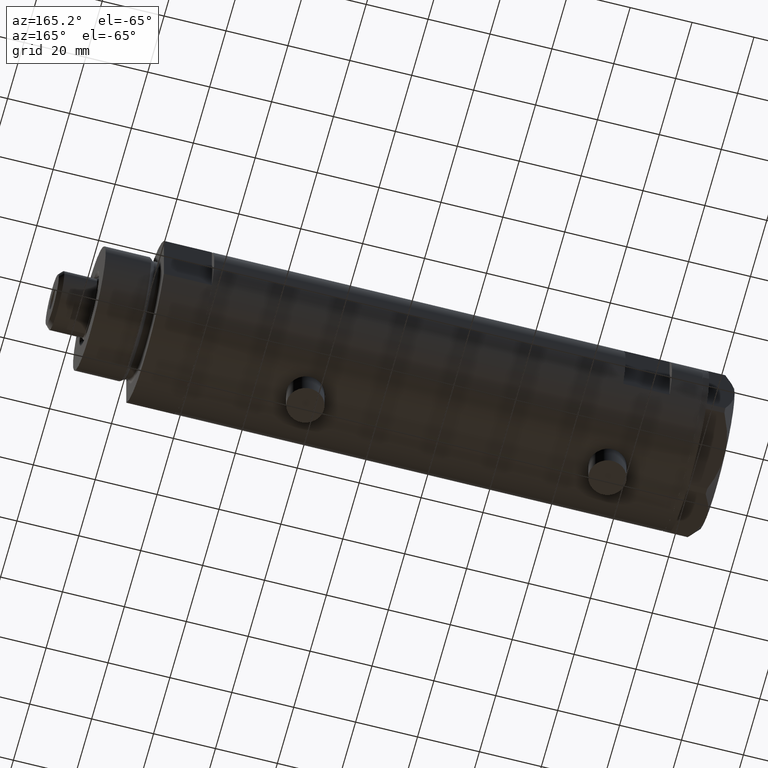
[diagram: clean part render]
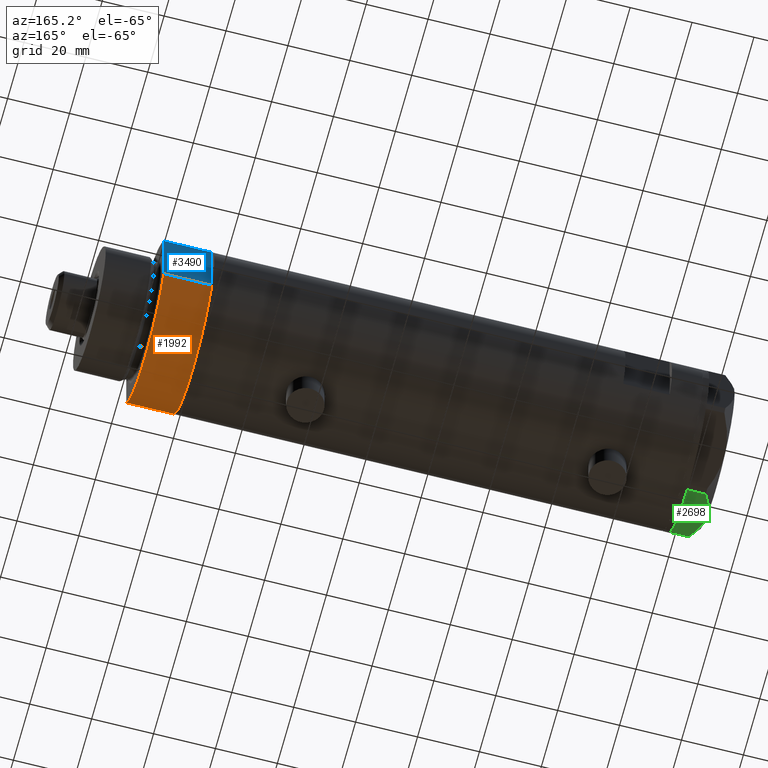
[diagram: same view with three faces highlighted in distinct colors, each labeled with its STEP entity id]
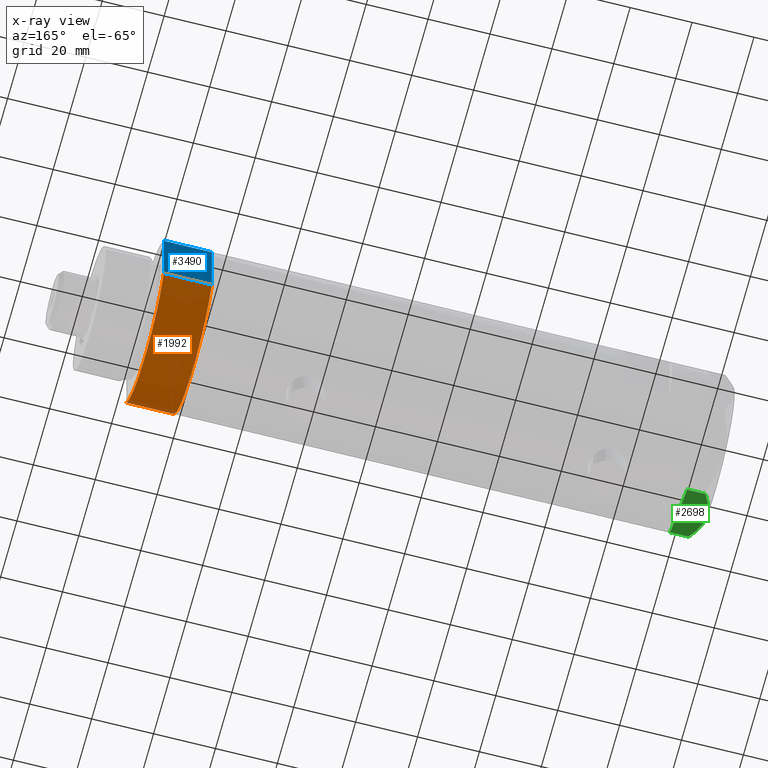
[diagram: x-ray of the same camera — body ghosted, the three highlighted faces saturated]
A machine part, auxiliary view with three faces highlighted in distinct colors.
The next image is the same camera in x-ray (body ghosted, the three faces saturated) — at least one of them is partly hidden behind the body in this view.
Their STEP definitions:

[orange] entity #1992 — the highlighted cylindrical surface (partial cylindrical patch) has radius 26 mm, axis along (-1, -0, 0).
#60 = CARTESIAN_POINT ( 'NONE',  ( 12.12435565298215323, -22.99999999999999645, 0.000000000000000000 ) ) ;
#234 = EDGE_CURVE ( 'NONE', #4527, #3625, #4142, .T. ) ;
#583 = CARTESIAN_POINT ( 'NONE',  ( 12.12435565298215323, -22.99999999999999645, 15.50000000000000000 ) ) ;
#625 = AXIS2_PLACEMENT_3D ( 'NONE', #2944, #1359, #3728 ) ;
#776 = CIRCLE ( 'NONE', #625, 26.00000000000000355 ) ;
#789 = LINE ( 'NONE', #60, #4627 ) ;
#970 = VERTEX_POINT ( 'NONE', #3458 ) ;
#1082 = CYLINDRICAL_SURFACE ( 'NONE', #4608, 26.00000000000000355 ) ;
#1359 = DIRECTION ( 'NONE',  ( 0.000000000000000000, 0.000000000000000000, 1.000000000000000000 ) ) ;
#1452 = DIRECTION ( 'NONE',  ( -0.000000000000000000, -0.000000000000000000, 1.000000000000000000 ) ) ;
#1538 = DIRECTION ( 'NONE',  ( 0.000000000000000000, 0.000000000000000000, 1.000000000000000000 ) ) ;
#1770 = FACE_OUTER_BOUND ( 'NONE', #4285, .T. ) ;
#1992 = ADVANCED_FACE ( 'NONE', ( #1770 ), #1082, .T. ) ;
#2047 = ORIENTED_EDGE ( 'NONE', *, *, #4305, .F. ) ;
#2201 = VERTEX_POINT ( 'NONE', #583 ) ;
#2208 = CARTESIAN_POINT ( 'NONE',  ( 0.000000000000000000, 0.000000000000000000, 0.000000000000000000 ) ) ;
#2209 = DIRECTION ( 'NONE',  ( -1.000000000000000000, 0.000000000000000000, 0.000000000000000000 ) ) ;
#2361 = ORIENTED_EDGE ( 'NONE', *, *, #3835, .T. ) ;
#2365 = DIRECTION ( 'NONE',  ( -0.000000000000000000, -0.000000000000000000, 1.000000000000000000 ) ) ;
#2587 = DIRECTION ( 'NONE',  ( -0.000000000000000000, -0.000000000000000000, -1.000000000000000000 ) ) ;
#2944 = CARTESIAN_POINT ( 'NONE',  ( 0.000000000000000000, 0.000000000000000000, 15.50000000000000000 ) ) ;
#3058 = AXIS2_PLACEMENT_3D ( 'NONE', #2208, #1538, #3425 ) ;
#3268 = ORIENTED_EDGE ( 'NONE', *, *, #4865, .F. ) ;
#3425 = DIRECTION ( 'NONE',  ( 1.000000000000000000, 0.000000000000000000, 0.000000000000000000 ) ) ;
#3458 = CARTESIAN_POINT ( 'NONE',  ( 12.12435565298215323, -22.99999999999999645, 0.000000000000000000 ) ) ;
#3513 = VECTOR ( 'NONE', #2365, 1000.000000000000000 ) ;
#3625 = VERTEX_POINT ( 'NONE', #4676 ) ;
#3728 = DIRECTION ( 'NONE',  ( 1.000000000000000000, 0.000000000000000000, 0.000000000000000000 ) ) ;
#3835 = EDGE_CURVE ( 'NONE', #970, #4527, #3999, .T. ) ;
#3873 = CARTESIAN_POINT ( 'NONE',  ( 12.12435565298215323, 23.00000000000000355, 0.000000000000000000 ) ) ;
#3999 = CIRCLE ( 'NONE', #3058, 26.00000000000000355 ) ;
#4040 = CARTESIAN_POINT ( 'NONE',  ( 0.000000000000000000, 0.000000000000000000, 15.50000000000000000 ) ) ;
#4142 = LINE ( 'NONE', #3873, #3513 ) ;
#4277 = ORIENTED_EDGE ( 'NONE', *, *, #234, .T. ) ;
#4285 = EDGE_LOOP ( 'NONE', ( #3268, #2047, #2361, #4277 ) ) ;
#4305 = EDGE_CURVE ( 'NONE', #970, #2201, #789, .T. ) ;
#4527 = VERTEX_POINT ( 'NONE', #4584 ) ;
#4584 = CARTESIAN_POINT ( 'NONE',  ( 12.12435565298214080, 23.00000000000000355, 0.000000000000000000 ) ) ;
#4608 = AXIS2_PLACEMENT_3D ( 'NONE', #4040, #2587, #2209 ) ;
#4627 = VECTOR ( 'NONE', #1452, 1000.000000000000000 ) ;
#4676 = CARTESIAN_POINT ( 'NONE',  ( 12.12435565298214790, 23.00000000000000355, 15.50000000000000000 ) ) ;
#4865 = EDGE_CURVE ( 'NONE', #2201, #3625, #776, .T. ) ;

[blue] entity #3490 — the highlighted planar face has unit normal (0, -1, -0).
#30 = CARTESIAN_POINT ( 'NONE',  ( -12.12435565298215145, 23.00000000000000355, 15.50000000000000000 ) ) ;
#80 = DIRECTION ( 'NONE',  ( -0.000000000000000000, -0.000000000000000000, 1.000000000000000000 ) ) ;
#234 = EDGE_CURVE ( 'NONE', #4527, #3625, #4142, .T. ) ;
#530 = VECTOR ( 'NONE', #80, 1000.000000000000000 ) ;
#935 = EDGE_LOOP ( 'NONE', ( #3862, #3184, #4587, #2202 ) ) ;
#1026 = EDGE_CURVE ( 'NONE', #2297, #3625, #3407, .T. ) ;
#1350 = DIRECTION ( 'NONE',  ( 0.000000000000000000, -1.000000000000000000, 0.000000000000000000 ) ) ;
#1516 = DIRECTION ( 'NONE',  ( 1.000000000000000000, 0.000000000000000000, 0.000000000000000000 ) ) ;
#1547 = AXIS2_PLACEMENT_3D ( 'NONE', #2858, #1350, #2078 ) ;
#1610 = VECTOR ( 'NONE', #4817, 1000.000000000000000 ) ;
#1989 = VECTOR ( 'NONE', #1516, 1000.000000000000000 ) ;
#2078 = DIRECTION ( 'NONE',  ( 0.000000000000000000, -0.000000000000000000, -1.000000000000000000 ) ) ;
#2109 = CARTESIAN_POINT ( 'NONE',  ( -12.12435565298215145, 23.00000000000000355, 0.000000000000000000 ) ) ;
#2202 = ORIENTED_EDGE ( 'NONE', *, *, #3646, .T. ) ;
#2297 = VERTEX_POINT ( 'NONE', #4774 ) ;
#2365 = DIRECTION ( 'NONE',  ( -0.000000000000000000, -0.000000000000000000, 1.000000000000000000 ) ) ;
#2601 = LINE ( 'NONE', #3323, #1610 ) ;
#2858 = CARTESIAN_POINT ( 'NONE',  ( -12.12435565298215145, 23.00000000000000355, 0.000000000000000000 ) ) ;
#3022 = EDGE_CURVE ( 'NONE', #3473, #4527, #2601, .T. ) ;
#3184 = ORIENTED_EDGE ( 'NONE', *, *, #234, .F. ) ;
#3323 = CARTESIAN_POINT ( 'NONE',  ( -12.12435565298215145, 23.00000000000000355, 0.000000000000000000 ) ) ;
#3336 = FACE_OUTER_BOUND ( 'NONE', #935, .T. ) ;
#3407 = LINE ( 'NONE', #30, #1989 ) ;
#3456 = LINE ( 'NONE', #3915, #530 ) ;
#3473 = VERTEX_POINT ( 'NONE', #2109 ) ;
#3490 = ADVANCED_FACE ( 'NONE', ( #3336 ), #4045, .F. ) ;
#3513 = VECTOR ( 'NONE', #2365, 1000.000000000000000 ) ;
#3625 = VERTEX_POINT ( 'NONE', #4676 ) ;
#3646 = EDGE_CURVE ( 'NONE', #3473, #2297, #3456, .T. ) ;
#3862 = ORIENTED_EDGE ( 'NONE', *, *, #1026, .T. ) ;
#3873 = CARTESIAN_POINT ( 'NONE',  ( 12.12435565298215323, 23.00000000000000355, 0.000000000000000000 ) ) ;
#3915 = CARTESIAN_POINT ( 'NONE',  ( -12.12435565298215145, 23.00000000000000355, 0.000000000000000000 ) ) ;
#4045 = PLANE ( 'NONE',  #1547 ) ;
#4142 = LINE ( 'NONE', #3873, #3513 ) ;
#4527 = VERTEX_POINT ( 'NONE', #4584 ) ;
#4584 = CARTESIAN_POINT ( 'NONE',  ( 12.12435565298214080, 23.00000000000000355, 0.000000000000000000 ) ) ;
#4587 = ORIENTED_EDGE ( 'NONE', *, *, #3022, .F. ) ;
#4676 = CARTESIAN_POINT ( 'NONE',  ( 12.12435565298214790, 23.00000000000000355, 15.50000000000000000 ) ) ;
#4774 = CARTESIAN_POINT ( 'NONE',  ( -12.12435565298214613, 23.00000000000000355, 15.50000000000000000 ) ) ;
#4817 = DIRECTION ( 'NONE',  ( 1.000000000000000000, 0.000000000000000000, 0.000000000000000000 ) ) ;

[green] entity #2698 — the highlighted planar face has unit normal (0, 0.5, 0.866).
#9 = CARTESIAN_POINT ( 'NONE',  ( -22.00000000000008171, 13.85640646055089498, 0.000000000000000000 ) ) ;
#108 = PLANE ( 'NONE',  #1299 ) ;
#137 = EDGE_CURVE ( 'NONE', #3980, #3860, #3296, .T. ) ;
#217 = CARTESIAN_POINT ( 'NONE',  ( -20.35958612119326361, 14.80349985506240884, 6.844201024438374859 ) ) ;
#231 = CARTESIAN_POINT ( 'NONE',  ( -9.656518383329848021, 20.98291889467267168, 8.907842277728436287 ) ) ;
#254 = ORIENTED_EDGE ( 'NONE', *, *, #2948, .F. ) ;
#302 = ORIENTED_EDGE ( 'NONE', *, *, #4542, .T. ) ;
#428 = B_SPLINE_CURVE_WITH_KNOTS ( 'NONE', 3,
 ( #1972, #1020, #4338, #4218, #2375, #2354, #231, #967, #1712, #3864 ),
 .UNSPECIFIED., .F., .F.,
 ( 4, 2, 2, 2, 4 ),
 ( 0.001228959670438516723, 0.007497079744270820564, 0.01063113978118697227, 0.01219816979964504812, 0.01376519981810312397 ),
 .UNSPECIFIED. ) ;
#523 = VECTOR ( 'NONE', #788, 1000.000000000000227 ) ;
#616 = ORIENTED_EDGE ( 'NONE', *, *, #137, .T. ) ;
#657 = ORIENTED_EDGE ( 'NONE', *, *, #988, .T. ) ;
#682 = CARTESIAN_POINT ( 'NONE',  ( -22.03005154776144181, 13.83905619136131371, 5.983800287807625295 ) ) ;
#764 = EDGE_CURVE ( 'NONE', #2327, #4707, #2497, .T. ) ;
#773 = VECTOR ( 'NONE', #2309, 1000.000000000000000 ) ;
#788 = DIRECTION ( 'NONE',  ( -0.8660254037844380415, -0.5000000000000008882, 0.000000000000000000 ) ) ;
#967 = CARTESIAN_POINT ( 'NONE',  ( -10.58093321976963175, 20.44920774001128549, 8.981686407609499767 ) ) ;
#988 = EDGE_CURVE ( 'NONE', #3860, #2327, #1159, .T. ) ;
#1020 = CARTESIAN_POINT ( 'NONE',  ( -2.626494320835632390, 25.04170517956325881, 6.877782426143454586 ) ) ;
#1030 = CARTESIAN_POINT ( 'NONE',  ( -0.9699484522384356211, 25.99811238272282310, 5.983800287807548912 ) ) ;
#1067 = DIRECTION ( 'NONE',  ( 0.000000000000000000, 0.000000000000000000, 1.000000000000000000 ) ) ;
#1159 = LINE ( 'NONE', #4862, #523 ) ;
#1212 = ORIENTED_EDGE ( 'NONE', *, *, #764, .T. ) ;
#1275 = DIRECTION ( 'NONE',  ( 0.8660254037844380415, 0.5000000000000008882, 0.000000000000000000 ) ) ;
#1299 = AXIS2_PLACEMENT_3D ( 'NONE', #1892, #3414, #1275 ) ;
#1318 = LINE ( 'NONE', #2074, #773 ) ;
#1421 = CARTESIAN_POINT ( 'NONE',  ( -17.77001848220191604, 16.29858742851882170, 7.892128867758443356 ) ) ;
#1558 = EDGE_CURVE ( 'NONE', #2693, #3980, #1860, .T. ) ;
#1700 = CARTESIAN_POINT ( 'NONE',  ( -21.20080365460318461, 14.31782268570115768, 6.431317509509388408 ) ) ;
#1712 = CARTESIAN_POINT ( 'NONE',  ( -11.04134848610939557, 20.18338686205100885, 9.000000000000094147 ) ) ;
#1860 = LINE ( 'NONE', #3762, #4213 ) ;
#1892 = CARTESIAN_POINT ( 'NONE',  ( 0.000000000000000000, 26.55811238272274366, 9.000000000000000000 ) ) ;
#1965 = FACE_OUTER_BOUND ( 'NONE', #2929, .T. ) ;
#1972 = CARTESIAN_POINT ( 'NONE',  ( -0.9699484522384356211, 25.99811238272282310, 5.983800287807548912 ) ) ;
#2074 = CARTESIAN_POINT ( 'NONE',  ( -0.9699484522385775076, 25.99811238272273783, 9.000000000000000000 ) ) ;
#2075 = CARTESIAN_POINT ( 'NONE',  ( -18.64279229058394804, 15.79469123530778951, 7.570552255229721084 ) ) ;
#2141 = DIRECTION ( 'NONE',  ( -0.8660254037844380415, -0.5000000000000008882, 0.000000000000000000 ) ) ;
#2309 = DIRECTION ( 'NONE',  ( 0.000000000000000000, 0.000000000000000000, -1.000000000000000000 ) ) ;
#2317 = ORIENTED_EDGE ( 'NONE', *, *, #3770, .F. ) ;
#2327 = VERTEX_POINT ( 'NONE', #3251 ) ;
#2337 = CARTESIAN_POINT ( 'NONE',  ( -0.9699484522385772856, 25.99811238272273783, 0.000000000000000000 ) ) ;
#2354 = CARTESIAN_POINT ( 'NONE',  ( -9.197898616902920210, 21.24770314027494678, 8.852712638955802404 ) ) ;
#2375 = CARTESIAN_POINT ( 'NONE',  ( -7.836767740116576952, 22.03355241838985279, 8.637313967156947214 ) ) ;
#2497 = LINE ( 'NONE', #2602, #4613 ) ;
#2602 = CARTESIAN_POINT ( 'NONE',  ( -22.03005154776143115, 13.83905619136131726, 9.000000000000000000 ) ) ;
#2693 = VERTEX_POINT ( 'NONE', #2337 ) ;
#2698 = ADVANCED_FACE ( 'NONE', ( #1965 ), #108, .F. ) ;
#2834 = CARTESIAN_POINT ( 'NONE',  ( -11.50000000000004441, 19.91858428704211548, 9.000000000000000000 ) ) ;
#2929 = EDGE_LOOP ( 'NONE', ( #657, #1212, #2317, #254, #302, #3957, #616 ) ) ;
#2948 = EDGE_CURVE ( 'NONE', #4754, #3088, #428, .T. ) ;
#3088 = VERTEX_POINT ( 'NONE', #3806 ) ;
#3228 = CARTESIAN_POINT ( 'NONE',  ( -22.03005154776144181, 13.83905619136131371, 5.983800287807625295 ) ) ;
#3251 = CARTESIAN_POINT ( 'NONE',  ( -22.03005154776142760, 13.83905619136131904, 0.000000000000000000 ) ) ;
#3296 = LINE ( 'NONE', #4795, #4454 ) ;
#3309 = CARTESIAN_POINT ( 'NONE',  ( -15.11535457301033247, 17.83125835109856183, 8.707651728477001640 ) ) ;
#3414 = DIRECTION ( 'NONE',  ( 0.5000000000000009992, -0.8660254037844381525, 0.000000000000000000 ) ) ;
#3603 = CARTESIAN_POINT ( 'NONE',  ( -19.07486218896994856, 15.54523556316589961, 7.397272853991406549 ) ) ;
#3762 = CARTESIAN_POINT ( 'NONE',  ( 0.000000000000000000, 26.55811238272274366, 0.000000000000000000 ) ) ;
#3770 = EDGE_CURVE ( 'NONE', #3088, #4707, #4069, .T. ) ;
#3806 = CARTESIAN_POINT ( 'NONE',  ( -11.50000000000004441, 19.91858428704211548, 9.000000000000000000 ) ) ;
#3860 = VERTEX_POINT ( 'NONE', #9 ) ;
#3864 = CARTESIAN_POINT ( 'NONE',  ( -11.50000000000004441, 19.91858428704211548, 9.000000000000000000 ) ) ;
#3957 = ORIENTED_EDGE ( 'NONE', *, *, #1558, .T. ) ;
#3980 = VERTEX_POINT ( 'NONE', #4314 ) ;
#4038 = CARTESIAN_POINT ( 'NONE',  ( -13.32175508098984729, 18.86679350063496585, 9.000000000000088818 ) ) ;
#4069 = B_SPLINE_CURVE_WITH_KNOTS ( 'NONE', 3,
 ( #2834, #4038, #3309, #4808, #1421, #2075, #3603, #217, #1700, #3228 ),
 .UNSPECIFIED., .F., .F.,
 ( 4, 2, 2, 2, 4 ),
 ( 0.01376519981810312397, 0.01998941321701588544, 0.02154546656674408145, 0.02310151991647227399, 0.02621362661592866600 ),
 .UNSPECIFIED. ) ;
#4213 = VECTOR ( 'NONE', #2141, 1000.000000000000227 ) ;
#4218 = CARTESIAN_POINT ( 'NONE',  ( -6.946777556903624529, 22.54738849024398206, 8.426899937603780089 ) ) ;
#4314 = CARTESIAN_POINT ( 'NONE',  ( -0.9999999999999089617, 25.98076211353316367, 0.000000000000000000 ) ) ;
#4338 = CARTESIAN_POINT ( 'NONE',  ( -4.320186229909880105, 24.06385169993494699, 7.629374868826106493 ) ) ;
#4454 = VECTOR ( 'NONE', #4494, 1000.000000000000227 ) ;
#4494 = DIRECTION ( 'NONE',  ( -0.8660254037844380415, -0.5000000000000008882, 0.000000000000000000 ) ) ;
#4542 = EDGE_CURVE ( 'NONE', #4754, #2693, #1318, .T. ) ;
#4613 = VECTOR ( 'NONE', #1067, 1000.000000000000000 ) ;
#4707 = VERTEX_POINT ( 'NONE', #682 ) ;
#4754 = VERTEX_POINT ( 'NONE', #1030 ) ;
#4795 = CARTESIAN_POINT ( 'NONE',  ( 0.000000000000000000, 26.55811238272274366, 0.000000000000000000 ) ) ;
#4808 = CARTESIAN_POINT ( 'NONE',  ( -17.32831362639718975, 16.55360584592005679, 8.040681765829335248 ) ) ;
#4862 = CARTESIAN_POINT ( 'NONE',  ( 0.000000000000000000, 26.55811238272274366, 0.000000000000000000 ) ) ;